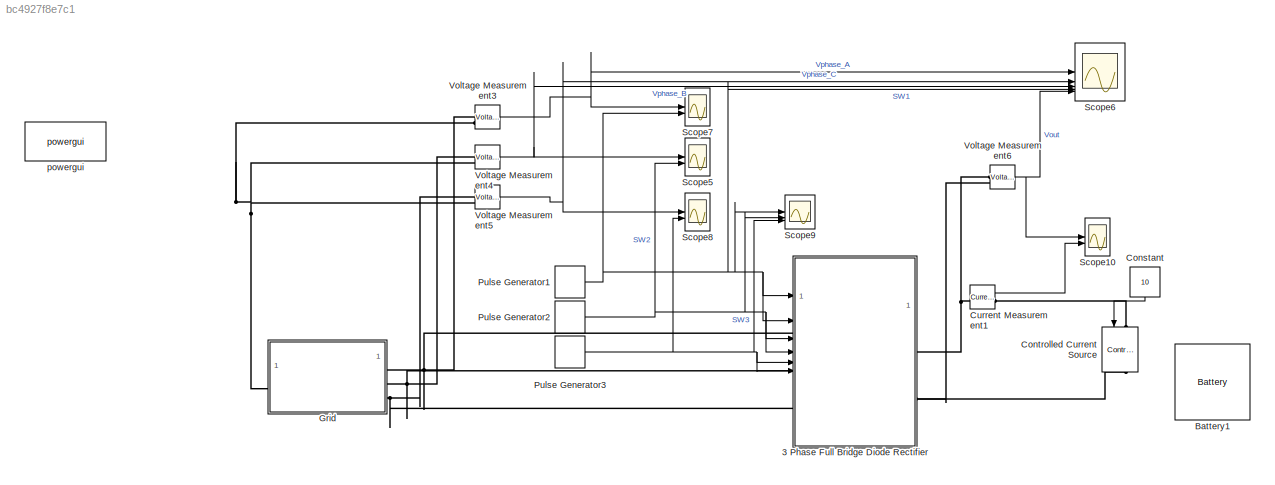
MODEL slx_bc4927f8e7c1
KIND model
CONFIG AbsTol = auto
CONFIG EnableMultiTasking = off
CONFIG FixedStep = auto
CONFIG MaxStep = tstepMax
CONFIG MinStep = auto
CONFIG RelTol = 1e-3
CONFIG SampleTimeConstraint = Unconstrained
CONFIG SolverName = VariableStepAuto
CONFIG StartTime = 0.0
CONFIG StopTime = 0.40
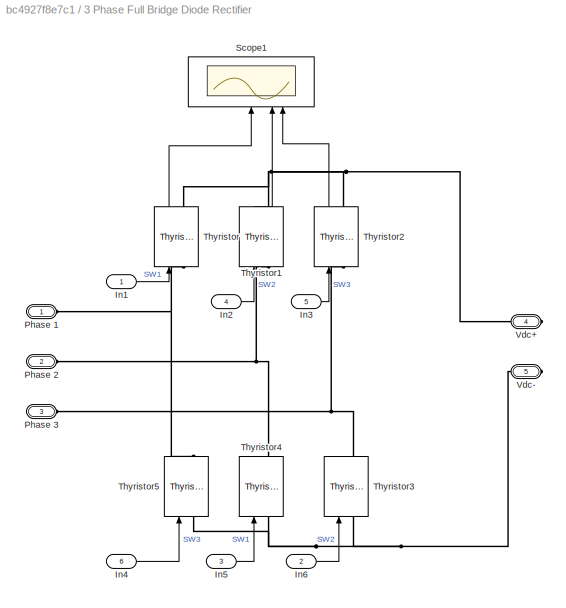
BLOCK [SubSystem] 3 Phase Full Bridge Diode Rectifier
BLOCK [Inport] 3 Phase Full Bridge Diode Rectifier/In1
  IconDisplay = Signal name
BLOCK [Inport] 3 Phase Full Bridge Diode Rectifier/In2
  IconDisplay = Signal name
  Port = 4
BLOCK [Inport] 3 Phase Full Bridge Diode Rectifier/In3
  IconDisplay = Signal name
  Port = 5
BLOCK [Inport] 3 Phase Full Bridge Diode Rectifier/In4
  IconDisplay = Signal name
  Port = 6
BLOCK [Inport] 3 Phase Full Bridge Diode Rectifier/In5
  IconDisplay = Signal name
  Port = 3
BLOCK [Inport] 3 Phase Full Bridge Diode Rectifier/In6
  IconDisplay = Signal name
  Port = 2
BLOCK [PMIOPort] 3 Phase Full Bridge Diode Rectifier/Phase 1
  Side = Left
BLOCK [PMIOPort] 3 Phase Full Bridge Diode Rectifier/Phase 2
  Port = 2
  Side = Left
BLOCK [PMIOPort] 3 Phase Full Bridge Diode Rectifier/Phase 3
  Port = 3
  Side = Left
BLOCK [Scope] 3 Phase Full Bridge Diode Rectifier/Scope1
  Floating = off
  NameLocation = right
  NumInputPorts = 3
  ScopeSpecificationString = Simulink.scopes.TimeScopeBlockCfg('CurrentConfiguration', extmgr.ConfigurationSet(extmgr.Configuration('Core','General UI',true),extmgr.Configuration('Core','Source UI',true),extmgr.Configuration('Sources','WiredSimulink',true,'DataLoggingVariableName','ScopeData1'),extmgr.Configuration('Visuals','Time Domain',true,'SerializedDisplays',{struct('MinYLimReal','-42.19333','MaxYLimReal','41.32989','YL...<+2969ch>
BLOCK [Reference] 3 Phase Full Bridge Diode Rectifier/Thyristor  REF=spsThyristorLib/Thyristor
  LibrarySourceBlock = sps_lib/Power Electronics/Thyristor
  NameLocation = right
  SourceBlock = spsThyristorLib/Thyristor
  SourceType = Thyristor
BLOCK [Reference] 3 Phase Full Bridge Diode Rectifier/Thyristor1  REF=spsThyristorLib/Thyristor
  LibrarySourceBlock = sps_lib/Power Electronics/Thyristor
  NameLocation = right
  SourceBlock = spsThyristorLib/Thyristor
  SourceType = Thyristor
BLOCK [Reference] 3 Phase Full Bridge Diode Rectifier/Thyristor2  REF=spsThyristorLib/Thyristor
  LibrarySourceBlock = sps_lib/Power Electronics/Thyristor
  NameLocation = right
  SourceBlock = spsThyristorLib/Thyristor
  SourceType = Thyristor
BLOCK [Reference] 3 Phase Full Bridge Diode Rectifier/Thyristor3  REF=spsThyristorLib/Thyristor
  LibrarySourceBlock = sps_lib/Power Electronics/Thyristor
  NameLocation = right
  SourceBlock = spsThyristorLib/Thyristor
  SourceType = Thyristor
BLOCK [Reference] 3 Phase Full Bridge Diode Rectifier/Thyristor4  REF=spsThyristorLib/Thyristor
  LibrarySourceBlock = sps_lib/Power Electronics/Thyristor
  NameLocation = right
  SourceBlock = spsThyristorLib/Thyristor
  SourceType = Thyristor
BLOCK [Reference] 3 Phase Full Bridge Diode Rectifier/Thyristor5  REF=spsThyristorLib/Thyristor
  LibrarySourceBlock = sps_lib/Power Electronics/Thyristor
  NameLocation = right
  SourceBlock = spsThyristorLib/Thyristor
  SourceType = Thyristor
BLOCK [PMIOPort] 3 Phase Full Bridge Diode Rectifier/Vdc+
  NameLocation = top
  Port = 4
  Side = Right
BLOCK [PMIOPort] 3 Phase Full Bridge Diode Rectifier/Vdc-
  NameLocation = top
  Port = 5
  Side = Right
BLOCK [Reference] Battery1  REF=spsBatteryLib/Battery
  Commented = on
  LibrarySourceBlock = sps_lib/Sources/Battery
  NameLocation = top
  SourceBlock = spsBatteryLib/Battery
  SourceType = Battery
BLOCK [Constant] Constant
  NameLocation = left
  Value = 10
BLOCK [Reference] Controlled Current Source  REF=spsControlledCurrentSourceLib/Controlled Current Source
  LibrarySourceBlock = sps_lib/Sources/Controlled Current Source
  NameLocation = top
  SourceBlock = spsControlledCurrentSourceLib/Controlled Current Source
  SourceType = Controlled Current Source
BLOCK [Reference] Current Measurement1  REF=spsCurrentMeasurementLib/Current Measurement
  LibrarySourceBlock = sps_lib/Sensors and Measurements/Current Measurement
  SourceBlock = spsCurrentMeasurementLib/Current Measurement
  SourceType = Current Measurement
  UserDataPersistent = on
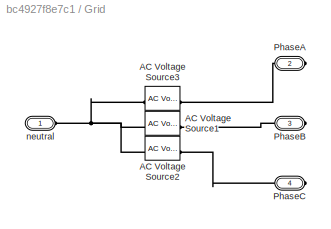
BLOCK [SubSystem] Grid
BLOCK [Reference] Grid/AC Voltage Source1  REF=spsACVoltageSourceLib/AC Voltage Source
  LibrarySourceBlock = sps_lib/Sources/AC Voltage Source
  NameLocation = left
  SourceBlock = spsACVoltageSourceLib/AC Voltage Source
  SourceType = AC Voltage Source
BLOCK [Reference] Grid/AC Voltage Source2  REF=spsACVoltageSourceLib/AC Voltage Source
  LibrarySourceBlock = sps_lib/Sources/AC Voltage Source
  NameLocation = left
  SourceBlock = spsACVoltageSourceLib/AC Voltage Source
  SourceType = AC Voltage Source
BLOCK [Reference] Grid/AC Voltage Source3  REF=spsACVoltageSourceLib/AC Voltage Source
  LibrarySourceBlock = sps_lib/Sources/AC Voltage Source
  NameLocation = left
  SourceBlock = spsACVoltageSourceLib/AC Voltage Source
  SourceType = AC Voltage Source
BLOCK [PMIOPort] Grid/PhaseA
  Port = 2
  Side = Right
BLOCK [PMIOPort] Grid/PhaseB
  Port = 3
  Side = Right
BLOCK [PMIOPort] Grid/PhaseC
  Port = 4
  Side = Right
BLOCK [PMIOPort] Grid/neutral
  NameLocation = top
  Side = Left
BLOCK [DiscretePulseGenerator] Pulse Generator1
  Period = 20e-3
  PhaseDelay = -20e-3/12 + alpha
  PulseType = Time based
  PulseWidth = 50
BLOCK [DiscretePulseGenerator] Pulse Generator2
  Period = 20e-3
  PhaseDelay = -20e-3/3+20e-3/12 + alpha
  PulseType = Time based
  PulseWidth = 50
BLOCK [DiscretePulseGenerator] Pulse Generator3
  Period = 20e-3
  PhaseDelay = -40e-3/3+20e-3/12 + alpha
  PulseType = Time based
  PulseWidth = 50
BLOCK [Scope] Scope10
  Floating = off
  NumInputPorts = 2
  ScopeSpecificationString = Simulink.scopes.TimeScopeBlockCfg('CurrentConfiguration', extmgr.ConfigurationSet(extmgr.Configuration('Core','General UI',true),extmgr.Configuration('Core','Source UI',true),extmgr.Configuration('Sources','WiredSimulink',true,'DataLoggingVariableName','ScopeData7'),extmgr.Configuration('Visuals','Time Domain',true,'SerializedDisplays',{struct('MinYLimReal','-30.35705','MaxYLimReal','31.49823','YL...<+2148ch>
BLOCK [Scope] Scope5
  Floating = off
  NumInputPorts = 2
  ScopeSpecificationString = Simulink.scopes.TimeScopeBlockCfg('CurrentConfiguration', extmgr.ConfigurationSet(extmgr.Configuration('Core','General UI',true),extmgr.Configuration('Core','Source UI',true),extmgr.Configuration('Sources','WiredSimulink',true,'DataLoggingVariableName','ScopeData4'),extmgr.Configuration('Visuals','Time Domain',true,'SerializedDisplays',{struct('MinYLimReal','-24.99999','MaxYLimReal','24.99994','YL...<+1519ch>
BLOCK [Scope] Scope6
  Floating = off
  NumInputPorts = 5
  ScopeSpecificationString = Simulink.scopes.TimeScopeBlockCfg('CurrentConfiguration', extmgr.ConfigurationSet(extmgr.Configuration('Core','General UI',true),extmgr.Configuration('Core','Source UI',true),extmgr.Configuration('Sources','WiredSimulink',true,'DataLoggingVariableName','OutputData1','DataLogging',true),extmgr.Configuration('Visuals','Time Domain',true,'SerializedDisplays',{struct('MinYLimReal','-26.62188','MaxYLim...<+1551ch>
BLOCK [Scope] Scope7
  Floating = off
  NumInputPorts = 2
  ScopeSpecificationString = Simulink.scopes.TimeScopeBlockCfg('CurrentConfiguration', extmgr.ConfigurationSet(extmgr.Configuration('Core','General UI',true),extmgr.Configuration('Core','Source UI',true),extmgr.Configuration('Sources','WiredSimulink',true,'DataLoggingVariableName','ScopeData3'),extmgr.Configuration('Visuals','Time Domain',true,'SerializedDisplays',{struct('MinYLimReal','-24.99999','MaxYLimReal','24.99999','YL...<+1514ch>
BLOCK [Scope] Scope8
  Floating = off
  NumInputPorts = 2
  ScopeSpecificationString = Simulink.scopes.TimeScopeBlockCfg('CurrentConfiguration', extmgr.ConfigurationSet(extmgr.Configuration('Core','General UI',true),extmgr.Configuration('Core','Source UI',true),extmgr.Configuration('Sources','WiredSimulink',true,'DataLoggingVariableName','ScopeData5'),extmgr.Configuration('Visuals','Time Domain',true,'SerializedDisplays',{struct('MinYLimReal','-25.00000','MaxYLimReal','25.00000','YL...<+1518ch>
BLOCK [Scope] Scope9
  Floating = off
  NumInputPorts = 3
  ScopeSpecificationString = Simulink.scopes.TimeScopeBlockCfg('CurrentConfiguration', extmgr.ConfigurationSet(extmgr.Configuration('Core','General UI',true),extmgr.Configuration('Core','Source UI',true),extmgr.Configuration('Sources','WiredSimulink',true,'DataLoggingVariableName','ScopeData6'),extmgr.Configuration('Visuals','Time Domain',true,'SerializedDisplays',{struct('MinYLimReal','-0.125','MaxYLimReal','1.125','YLabelRe...<+1485ch>
BLOCK [Reference] Voltage Measurement3  REF=spsVoltageMeasurementLib/Voltage Measurement
  LibrarySourceBlock = sps_lib/Sensors and Measurements/Voltage Measurement
  SourceBlock = spsVoltageMeasurementLib/Voltage Measurement
  SourceType = Voltage Measurement
  UserDataPersistent = on
BLOCK [Reference] Voltage Measurement4  REF=spsVoltageMeasurementLib/Voltage Measurement
  LibrarySourceBlock = sps_lib/Sensors and Measurements/Voltage Measurement
  SourceBlock = spsVoltageMeasurementLib/Voltage Measurement
  SourceType = Voltage Measurement
  UserDataPersistent = on
BLOCK [Reference] Voltage Measurement5  REF=spsVoltageMeasurementLib/Voltage Measurement
  LibrarySourceBlock = sps_lib/Sensors and Measurements/Voltage Measurement
  SourceBlock = spsVoltageMeasurementLib/Voltage Measurement
  SourceType = Voltage Measurement
  UserDataPersistent = on
BLOCK [Reference] Voltage Measurement6  REF=spsVoltageMeasurementLib/Voltage Measurement
  LibrarySourceBlock = sps_lib/Sensors and Measurements/Voltage Measurement
  SourceBlock = spsVoltageMeasurementLib/Voltage Measurement
  SourceType = Voltage Measurement
  UserDataPersistent = on
BLOCK [Reference] powergui  REF=spspowerguiLib/powergui
  LibrarySourceBlock = sps_lib/powergui
  Priority = 1
  SourceBlock = spspowerguiLib/powergui
  SourceType = PSB option menu block
LINE 3 Phase Full Bridge Diode Rectifier/In1:1 -> 3 Phase Full Bridge Diode Rectifier/Thyristor:1
LINE 3 Phase Full Bridge Diode Rectifier/In2:1 -> 3 Phase Full Bridge Diode Rectifier/Thyristor1:1
LINE 3 Phase Full Bridge Diode Rectifier/In3:1 -> 3 Phase Full Bridge Diode Rectifier/Thyristor2:1
LINE 3 Phase Full Bridge Diode Rectifier/In4:1 -> 3 Phase Full Bridge Diode Rectifier/Thyristor5:1
LINE 3 Phase Full Bridge Diode Rectifier/In5:1 -> 3 Phase Full Bridge Diode Rectifier/Thyristor4:1
LINE 3 Phase Full Bridge Diode Rectifier/In6:1 -> 3 Phase Full Bridge Diode Rectifier/Thyristor3:1
LINE 3 Phase Full Bridge Diode Rectifier/Thyristor1:1 -> 3 Phase Full Bridge Diode Rectifier/Scope1:2
LINE 3 Phase Full Bridge Diode Rectifier/Thyristor2:1 -> 3 Phase Full Bridge Diode Rectifier/Scope1:3
LINE 3 Phase Full Bridge Diode Rectifier/Thyristor:1 -> 3 Phase Full Bridge Diode Rectifier/Scope1:1
LINE Constant:1 -> Controlled Current Source:1
LINE Current Measurement1:1 -> Scope10:2
NET Pulse Generator1:1 -> 3 Phase Full Bridge Diode Rectifier:1, 3 Phase Full Bridge Diode Rectifier:2, Scope6:4, Scope7:2, Scope9:1
NET Pulse Generator2:1 -> 3 Phase Full Bridge Diode Rectifier:3, 3 Phase Full Bridge Diode Rectifier:4, Scope5:2, Scope9:2
NET Pulse Generator3:1 -> 3 Phase Full Bridge Diode Rectifier:5, 3 Phase Full Bridge Diode Rectifier:6, Scope8:2, Scope9:3
NET Voltage Measurement3:1 -> Scope6:1, Scope7:1
NET Voltage Measurement4:1 -> Scope5:1, Scope6:3
NET Voltage Measurement5:1 -> Scope6:2, Scope8:1
NET Voltage Measurement6:1 -> Scope10:1, Scope6:5
PNET net1: 3 Phase Full Bridge Diode Rectifier/Phase 1:RConn1 -- 3 Phase Full Bridge Diode Rectifier/Thyristor5:RConn1 -- 3 Phase Full Bridge Diode Rectifier/Thyristor:LConn1
PNET net2: 3 Phase Full Bridge Diode Rectifier/Phase 2:RConn1 -- 3 Phase Full Bridge Diode Rectifier/Thyristor1:LConn1 -- 3 Phase Full Bridge Diode Rectifier/Thyristor4:RConn1
PNET net3: 3 Phase Full Bridge Diode Rectifier/Phase 3:RConn1 -- 3 Phase Full Bridge Diode Rectifier/Thyristor2:LConn1 -- 3 Phase Full Bridge Diode Rectifier/Thyristor3:RConn1
PNET net4: 3 Phase Full Bridge Diode Rectifier/Thyristor1:RConn1 -- 3 Phase Full Bridge Diode Rectifier/Thyristor2:RConn1 -- 3 Phase Full Bridge Diode Rectifier/Thyristor:RConn1 -- 3 Phase Full Bridge Diode Rectifier/Vdc+:RConn1
PNET net5: 3 Phase Full Bridge Diode Rectifier/Thyristor3:LConn1 -- 3 Phase Full Bridge Diode Rectifier/Thyristor4:LConn1 -- 3 Phase Full Bridge Diode Rectifier/Thyristor5:LConn1 -- 3 Phase Full Bridge Diode Rectifier/Vdc-:RConn1
PNET net6: 3 Phase Full Bridge Diode Rectifier:LConn1 -- Grid:RConn1 -- Voltage Measurement3:LConn1
PNET net7: 3 Phase Full Bridge Diode Rectifier:LConn2 -- Grid:RConn2 -- Voltage Measurement4:LConn1
PNET net8: 3 Phase Full Bridge Diode Rectifier:LConn3 -- Grid:RConn3 -- Voltage Measurement5:LConn1
PNET net9: 3 Phase Full Bridge Diode Rectifier:RConn1 -- Current Measurement1:LConn1 -- Voltage Measurement6:LConn1
PNET net10: 3 Phase Full Bridge Diode Rectifier:RConn2 -- Controlled Current Source:RConn1 -- Voltage Measurement6:LConn2
PLINE Controlled Current Source:LConn1 -- Current Measurement1:RConn1
PNET net11: Grid/AC Voltage Source1:LConn1 -- Grid/AC Voltage Source2:LConn1 -- Grid/AC Voltage Source3:LConn1 -- Grid/neutral:RConn1
PLINE Grid/AC Voltage Source1:RConn1 -- Grid/PhaseB:RConn1
PLINE Grid/AC Voltage Source2:RConn1 -- Grid/PhaseC:RConn1
PLINE Grid/AC Voltage Source3:RConn1 -- Grid/PhaseA:RConn1
PNET net12: Grid:LConn1 -- Voltage Measurement3:LConn2 -- Voltage Measurement4:LConn2 -- Voltage Measurement5:LConn2
note: NET lines group one-source signal fan-out (src -> all destinations, sorted); 1:1 wires keep LINE; PNET lines group multi-terminal physical nets as a canonical sorted terminal list (undirected conserving connections); 2-terminal nets keep the pairwise PLINE form
